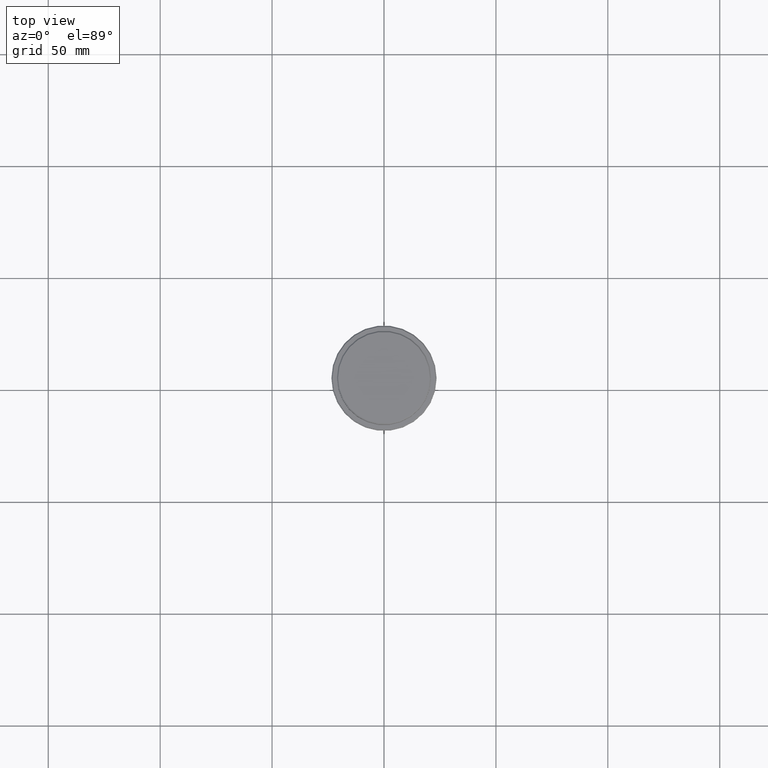
[diagram: clean part render]
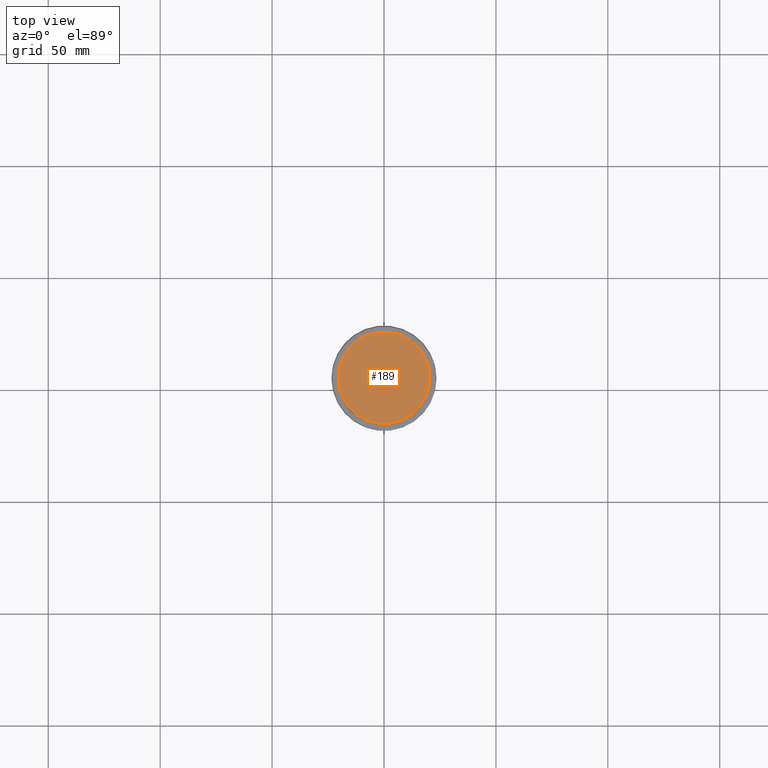
[diagram: same view with one face highlighted and labeled with its STEP entity id]
A machine part, top view. The second image highlights one B-rep face of the part: STEP entity #189.
In plain terms, the highlighted planar face has unit normal (0, -0, 1).
Its self-contained STEP definition (entity closure, byte-faithful):
#8 = CARTESIAN_POINT ( 'NONE',  ( 20.50000000000004619, 2.541142108230760635E-15, 0.000000000000000000 ) ) ;
#31 = DIRECTION ( 'NONE',  ( 0.000000000000000000, -0.000000000000000000, 1.000000000000000000 ) ) ;
#116 = CARTESIAN_POINT ( 'NONE',  ( 0.000000000000000000, 0.000000000000000000, 0.000000000000000000 ) ) ;
#132 = PLANE ( 'NONE',  #1000 ) ;
#188 = DIRECTION ( 'NONE',  ( 1.000000000000000000, 0.000000000000000000, 0.000000000000000000 ) ) ;
#189 = ADVANCED_FACE ( 'NONE', ( #905 ), #132, .T. ) ;
#222 = ORIENTED_EDGE ( 'NONE', *, *, #1249, .T. ) ;
#291 = ORIENTED_EDGE ( 'NONE', *, *, #940, .T. ) ;
#309 = DIRECTION ( 'NONE',  ( 1.000000000000000000, 0.000000000000000000, 0.000000000000000000 ) ) ;
#353 = DIRECTION ( 'NONE',  ( -0.000000000000000000, -0.000000000000000000, 1.000000000000000000 ) ) ;
#374 = EDGE_LOOP ( 'NONE', ( #222, #291 ) ) ;
#576 = CIRCLE ( 'NONE', #1116, 20.50000000000004619 ) ;
#609 = VERTEX_POINT ( 'NONE', #8 ) ;
#728 = VERTEX_POINT ( 'NONE', #825 ) ;
#808 = DIRECTION ( 'NONE',  ( 1.000000000000000000, 0.000000000000000000, 0.000000000000000000 ) ) ;
#825 = CARTESIAN_POINT ( 'NONE',  ( -20.50000000000004619, 0.000000000000000000, 0.000000000000000000 ) ) ;
#848 = CARTESIAN_POINT ( 'NONE',  ( 0.000000000000000000, 0.000000000000000000, 0.000000000000000000 ) ) ;
#897 = AXIS2_PLACEMENT_3D ( 'NONE', #848, #1169, #188 ) ;
#905 = FACE_OUTER_BOUND ( 'NONE', #374, .T. ) ;
#921 = CIRCLE ( 'NONE', #897, 20.50000000000004619 ) ;
#940 = EDGE_CURVE ( 'NONE', #609, #728, #576, .T. ) ;
#1000 = AXIS2_PLACEMENT_3D ( 'NONE', #116, #31, #808 ) ;
#1116 = AXIS2_PLACEMENT_3D ( 'NONE', #1313, #353, #309 ) ;
#1169 = DIRECTION ( 'NONE',  ( -0.000000000000000000, -0.000000000000000000, 1.000000000000000000 ) ) ;
#1249 = EDGE_CURVE ( 'NONE', #728, #609, #921, .T. ) ;
#1313 = CARTESIAN_POINT ( 'NONE',  ( 0.000000000000000000, 0.000000000000000000, 0.000000000000000000 ) ) ;